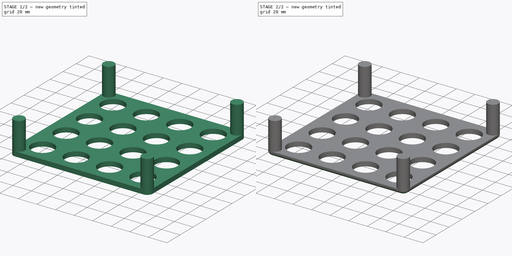
[diagram: build sequence overview — one tinted view per stage of 2, left to right]
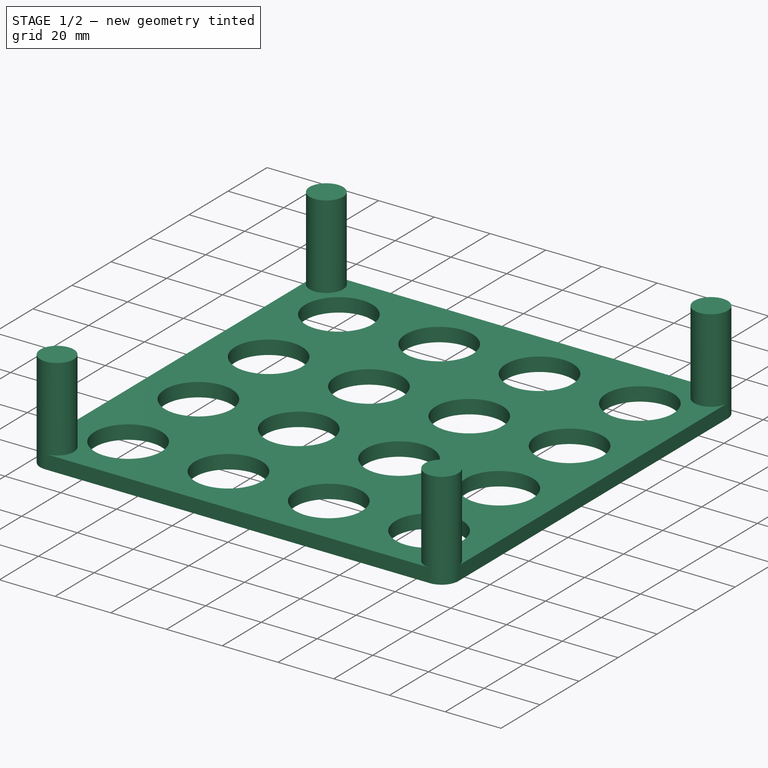
[diagram: stage 1 of 2 — iso view after this stage's code; geometry added in this stage tinted green]
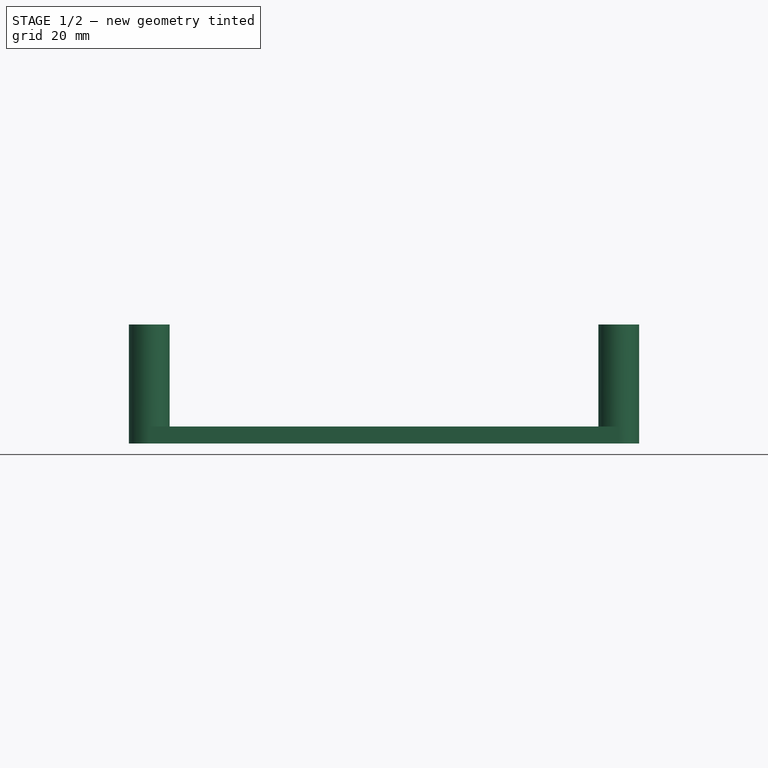
[diagram: stage 1 of 2 — front view after this stage's code; geometry added in this stage tinted green]
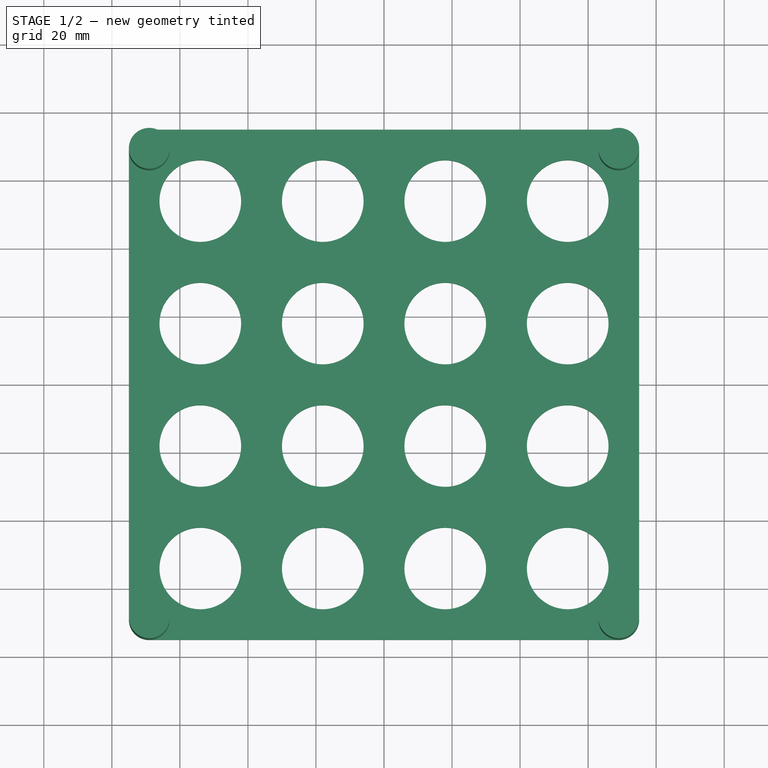
[diagram: stage 1 of 2 — top view after this stage's code; geometry added in this stage tinted green]
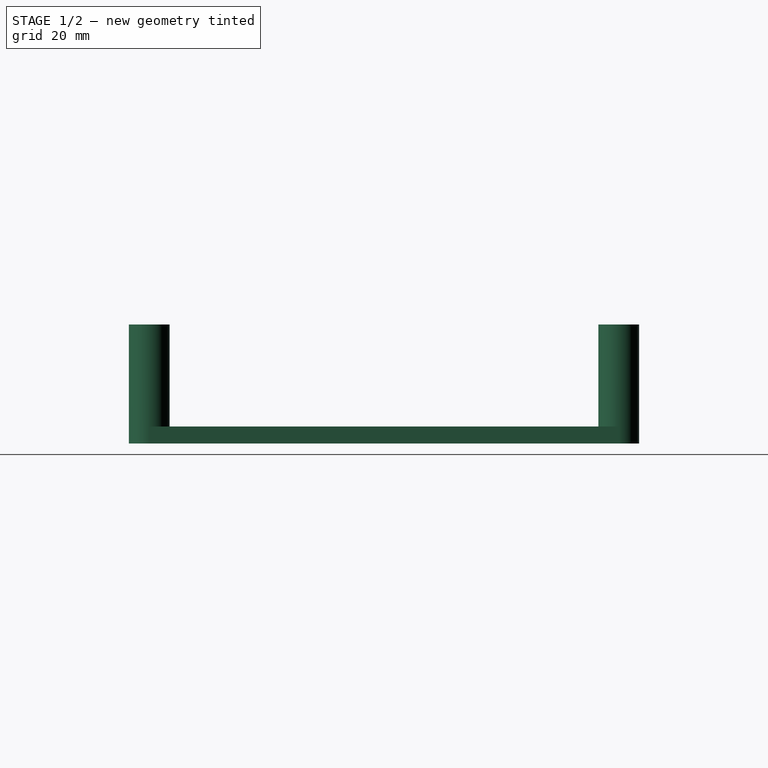
[diagram: stage 1 of 2 — right view after this stage's code; geometry added in this stage tinted green]
FCSTD DOCUMENT  (FreeCAD 1.0R39109 (Git))
Label: midi_controller
License: All rights reserved
LicenseURL: https://en.wikipedia.org/wiki/All_rights_reserved
objects: Sketcher::SketchObject×2, PartDesign::Pad×2, PartDesign::Fillet×1, PartDesign::Body×1
note: 14 computed .brp shape members not serialized (recipe doc carries the construction recipe); baked Part::Feature solids carry a one-line shape summary decoded from their .brp

FEATURE [Sketcher::SketchObject] Sketch
  ArcFitTolerance = 1e-06
  AttachmentSupport = -> [XY_Plane]
  FullyConstrained = false
  MakeInternals = false
  MapMode = 5
  sketch-geometry (29):
    g0: LineSegment StartX=-69 StartY=-75 StartZ=0 EndX=69 EndY=-75 EndZ=0
    g1: LineSegment StartX=75 StartY=-69 StartZ=0 EndX=75 EndY=69 EndZ=0
    g2: LineSegment StartX=69 StartY=75 StartZ=0 EndX=-69 EndY=75 EndZ=0
    g3: LineSegment StartX=-75 StartY=69 StartZ=0 EndX=-75 EndY=-69 EndZ=0
    g4: GeomPoint [constr] X=0 Y=0 Z=0
    g5: Circle CenterX=-54 CenterY=54 CenterZ=0 NormalX=0 NormalY=0 NormalZ=1 AngleXU=0 Radius=12
    g6: Circle CenterX=-18 CenterY=54 CenterZ=0 NormalX=0 NormalY=0 NormalZ=1 AngleXU=0 Radius=12
    g7: Circle CenterX=18 CenterY=54 CenterZ=0 NormalX=0 NormalY=0 NormalZ=1 AngleXU=0 Radius=12
    g8: Circle CenterX=54 CenterY=54 CenterZ=0 NormalX=0 NormalY=0 NormalZ=1 AngleXU=0 Radius=12
    g9: Circle CenterX=-54 CenterY=18 CenterZ=0 NormalX=0 NormalY=0 NormalZ=1 AngleXU=0 Radius=12
    g10: Circle CenterX=-18 CenterY=18 CenterZ=0 NormalX=0 NormalY=0 NormalZ=1 AngleXU=0 Radius=12
    g11: Circle CenterX=18 CenterY=18 CenterZ=0 NormalX=0 NormalY=0 NormalZ=1 AngleXU=0 Radius=12
    g12: Circle CenterX=54 CenterY=18 CenterZ=0 NormalX=0 NormalY=0 NormalZ=1 AngleXU=0 Radius=12
    g13: Circle CenterX=-54 CenterY=-18 CenterZ=0 NormalX=0 NormalY=0 NormalZ=1 AngleXU=0 Radius=12
    g14: Circle CenterX=-18 CenterY=-18 CenterZ=0 NormalX=0 NormalY=0 NormalZ=1 AngleXU=0 Radius=12
    g15: Circle CenterX=18 CenterY=-18 CenterZ=0 NormalX=0 NormalY=0 NormalZ=1 AngleXU=0 Radius=12
    g16: Circle CenterX=54 CenterY=-18 CenterZ=0 NormalX=0 NormalY=0 NormalZ=1 AngleXU=0 Radius=12
    g17: Circle CenterX=-54 CenterY=-54 CenterZ=0 NormalX=0 NormalY=0 NormalZ=1 AngleXU=0 Radius=12
    g18: Circle CenterX=-18 CenterY=-54 CenterZ=0 NormalX=0 NormalY=0 NormalZ=1 AngleXU=0 Radius=12
    g19: Circle CenterX=18 CenterY=-54 CenterZ=0 NormalX=0 NormalY=0 NormalZ=1 AngleXU=0 Radius=12
    g20: Circle CenterX=54 CenterY=-54 CenterZ=0 NormalX=0 NormalY=0 NormalZ=1 AngleXU=0 Radius=12
    g21: ArcOfCircle CenterX=-69 CenterY=69 CenterZ=0 NormalX=0 NormalY=0 NormalZ=1 AngleXU=0 Radius=6 StartAngle=1.5708 EndAngle=3.14159
    g22: GeomPoint [constr] X=-75 Y=75 Z=0
    g23: ArcOfCircle CenterX=69 CenterY=69 CenterZ=0 NormalX=0 NormalY=0 NormalZ=1 AngleXU=0 Radius=6 StartAngle=7e-16 EndAngle=1.5708
    g24: GeomPoint [constr] X=75 Y=75 Z=0
    g25: ArcOfCircle CenterX=69 CenterY=-69 CenterZ=0 NormalX=0 NormalY=0 NormalZ=1 AngleXU=0 Radius=6 StartAngle=4.71239 EndAngle=6.28319
    g26: GeomPoint [constr] X=75 Y=-75 Z=0
    g27: ArcOfCircle CenterX=-69 CenterY=-69 CenterZ=0 NormalX=0 NormalY=0 NormalZ=1 AngleXU=0 Radius=6 StartAngle=3.14159 EndAngle=4.71239
    g28: GeomPoint [constr] X=-75 Y=-75 Z=0
  constraints (48):
    c: Horizontal(g0)
    c: Horizontal(g2)
    c: Vertical(g1)
    c: Vertical(g3)
    c: Symmetric(g24,g28,g4)
    c: Distance(g26,g28) = 150
    c: Distance(g28,g22) = 150
    c: Coincident(g4,g-1)
    c: Diameter(g5) = 24
    c: Distance(g5,g2) = 21
    c: Distance(g5,g3) = 21
    c: Diameter(g6) = 24
    c: Diameter(g7) = 24
    c: Diameter(g8) = 24
    c: Diameter(g9) = 24
    c: Diameter(g10) = 24
    c: Diameter(g11) = 24
    c: Diameter(g12) = 24
    c: Diameter(g13) = 24
    c: Diameter(g14) = 24
    c: Diameter(g15) = 24
    c: Diameter(g16) = 24
    c: Diameter(g17) = 24
    c: Diameter(g18) = 24
    c: Diameter(g19) = 24
    c: Diameter(g20) = 24
    c: Distance(g20,g0) = 21
    c: Distance(g20,g1) = 21
    c: PointOnObject(g22,g3)
    c: PointOnObject(g22,g2)
    c: Tangent(g3,g21) = -1.5708
    c: Tangent(g2,g21) = -1.5708
    c: PointOnObject(g24,g2)
    c: PointOnObject(g24,g1)
    c: Tangent(g2,g23) = -1.5708
    c: Tangent(g1,g23) = -1.5708
    c: PointOnObject(g26,g1)
    c: PointOnObject(g26,g0)
    c: Tangent(g1,g25) = -1.5708
    c: Tangent(g0,g25) = -1.5708
    c: PointOnObject(g28,g3)
    c: PointOnObject(g28,g0)
    c: Tangent(g3,g27) = -1.5708
    c: Tangent(g0,g27) = -1.5708
    c: Radius(g21) = 6
    c: Radius(g23) = 6
    c: Radius(g25) = 6
    c: Radius(g27) = 6
FEATURE [PartDesign::Pad] Pad
  Direction = (0,0,1)
  Length = 5
  Length2 = 10
  Profile = -> Sketch
  ReferenceAxis = -> Sketch [N_Axis]
  Refine = true
  Suppressed = false
  Type = 0
FEATURE [Sketcher::SketchObject] Sketch001
  ArcFitTolerance = 1e-06
  AttachmentSupport = -> [Pad]
  FullyConstrained = true
  MakeInternals = false
  MapMode = 5
  Placement = pos=(0,0,5) rot=(0,0,1;0rad)
  sketch-geometry (17):
    g0: LineSegment [constr] StartX=-69 StartY=-75 StartZ=0 EndX=69 EndY=-75 EndZ=0
    g1: LineSegment [constr] StartX=75 StartY=-69 StartZ=0 EndX=75 EndY=69 EndZ=0
    g2: LineSegment [constr] StartX=69 StartY=75 StartZ=0 EndX=-69 EndY=75 EndZ=0
    g3: LineSegment [constr] StartX=-75 StartY=69 StartZ=0 EndX=-75 EndY=-69 EndZ=0
    g4: GeomPoint [constr] X=0 Y=0 Z=0
    g5: ArcOfCircle [constr] CenterX=-69 CenterY=69 CenterZ=0 NormalX=0 NormalY=0 NormalZ=1 AngleXU=0 Radius=6 StartAngle=1.5708 EndAngle=3.14159
    g6: GeomPoint [constr] X=-75 Y=75 Z=0
    g7: ArcOfCircle [constr] CenterX=-69 CenterY=-69 CenterZ=0 NormalX=0 NormalY=0 NormalZ=1 AngleXU=0 Radius=6 StartAngle=3.14159 EndAngle=4.71239
    g8: GeomPoint [constr] X=-75 Y=-75 Z=0
    g9: ArcOfCircle [constr] CenterX=69 CenterY=-69 CenterZ=0 NormalX=0 NormalY=0 NormalZ=1 AngleXU=0 Radius=6 StartAngle=4.71239 EndAngle=6.28319
    g10: GeomPoint [constr] X=75 Y=-75 Z=0
    g11: ArcOfCircle [constr] CenterX=69 CenterY=69 CenterZ=0 NormalX=0 NormalY=0 NormalZ=1 AngleXU=0 Radius=6 StartAngle=0 EndAngle=1.5708
    g12: GeomPoint [constr] X=75 Y=75 Z=0
    g13: Circle CenterX=-69 CenterY=69 CenterZ=0 NormalX=0 NormalY=0 NormalZ=1 AngleXU=0 Radius=6
    g14: Circle CenterX=69 CenterY=69 CenterZ=0 NormalX=0 NormalY=0 NormalZ=1 AngleXU=0 Radius=6
    g15: Circle CenterX=69 CenterY=-69 CenterZ=0 NormalX=0 NormalY=0 NormalZ=1 AngleXU=0 Radius=6
    g16: Circle CenterX=-69 CenterY=-69 CenterZ=0 NormalX=0 NormalY=0 NormalZ=1 AngleXU=0 Radius=6
  constraints (36):
    c: Horizontal(g0)
    c: Horizontal(g2)
    c: Vertical(g1)
    c: Vertical(g3)
    c: Symmetric(g12,g8,g4)
    c: Distance(g10,g8) = 150
    c: Distance(g8,g6) = 150
    c: Coincident(g4,g-1)
    c: PointOnObject(g6,g2)
    c: PointOnObject(g6,g3)
    c: Tangent(g2,g5) = -1.5708
    c: Tangent(g3,g5) = -1.5708
    c: PointOnObject(g8,g3)
    c: PointOnObject(g8,g0)
    c: Tangent(g3,g7) = -1.5708
    c: Tangent(g0,g7) = -1.5708
    c: PointOnObject(g10,g0)
    c: PointOnObject(g10,g1)
    c: Tangent(g0,g9) = -1.5708
    c: Tangent(g1,g9) = -1.5708
    c: PointOnObject(g12,g2)
    c: PointOnObject(g12,g1)
    c: Tangent(g2,g11) = -1.5708
    c: Tangent(g1,g11) = -1.5708
    c: Radius(g5) = 6
    c: Radius(g11) = 6
    c: Radius(g9) = 6
    c: Radius(g7) = 6
    c: Coincident(g13,g5)
    c: PointOnObject(g2,g13)
    c: Coincident(g14,g11)
    c: PointOnObject(g2,g14)
    c: Coincident(g15,g9)
    c: Equal(g15,g9)
    c: Coincident(g16,g7)
    c: PointOnObject(g0,g16)
FEATURE [PartDesign::Pad] Pad001
  BaseFeature = -> Pad
  Direction = (0,0,1)
  Length = 30
  Length2 = 10
  Profile = -> Sketch001
  ReferenceAxis = -> Sketch001 [N_Axis]
  Refine = true
  Suppressed = false
  Type = 0
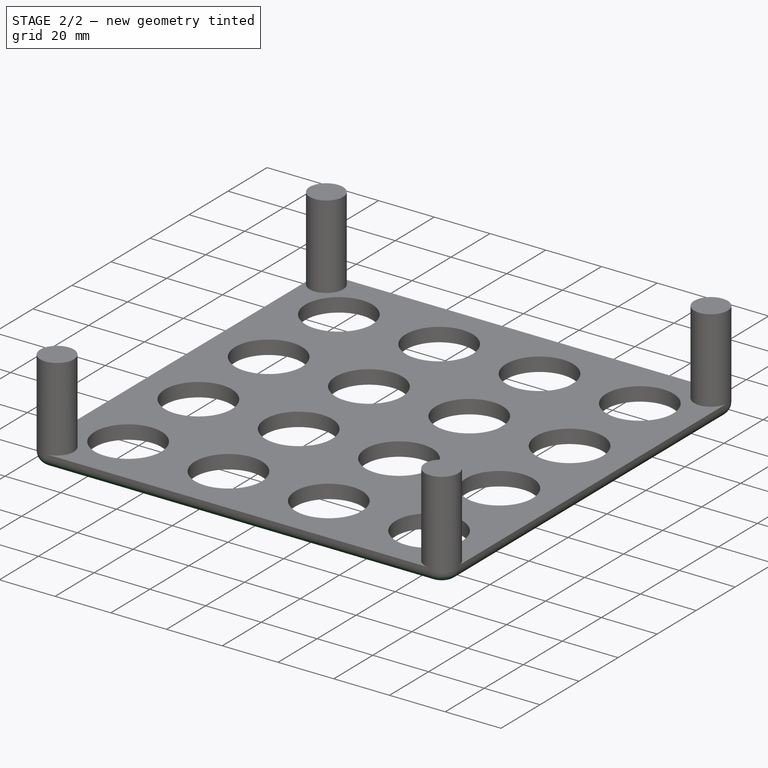
[diagram: stage 2 of 2 — iso view after this stage's code; geometry added in this stage tinted green]
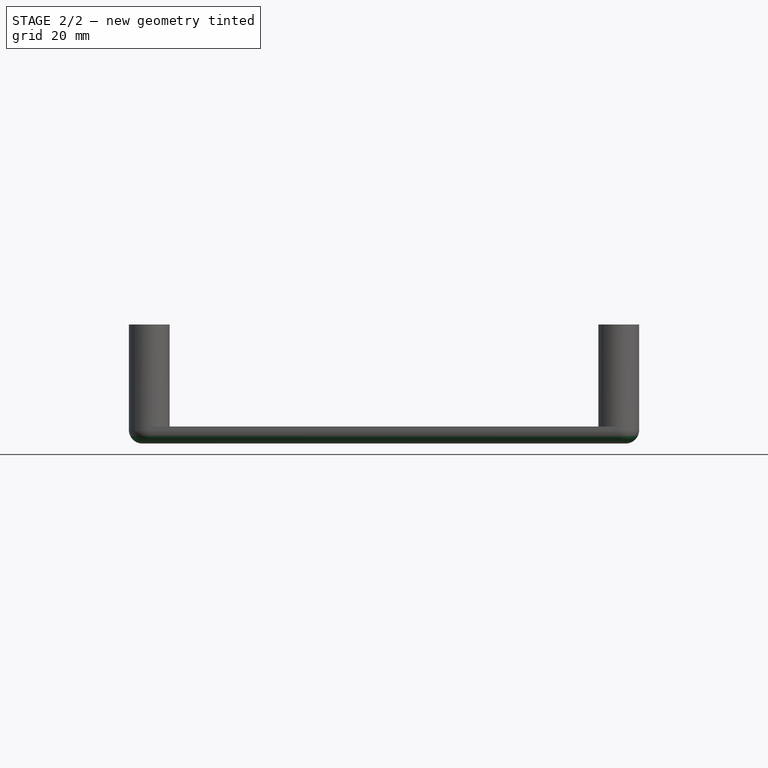
[diagram: stage 2 of 2 — front view after this stage's code; geometry added in this stage tinted green]
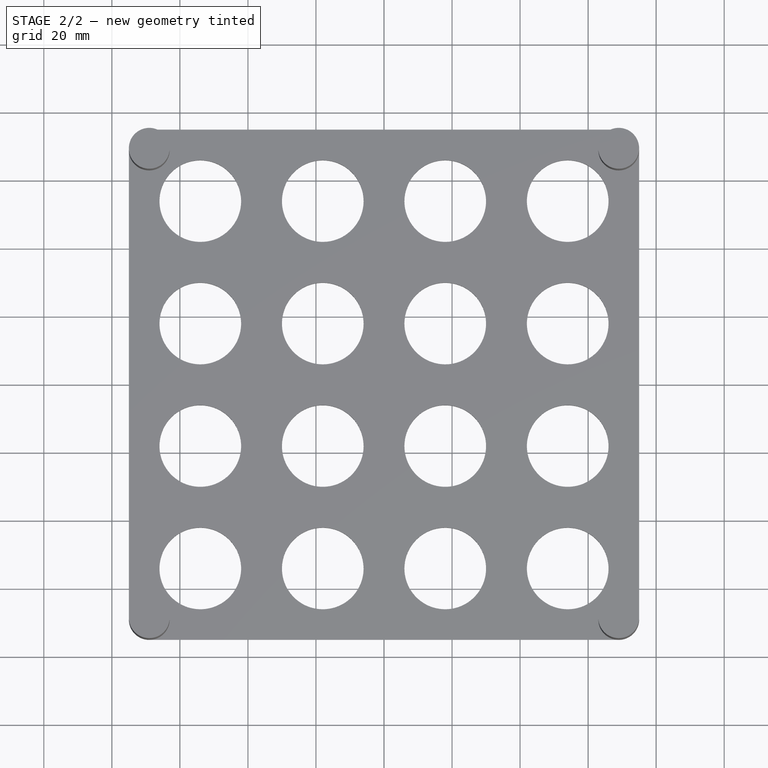
[diagram: stage 2 of 2 — top view after this stage's code; geometry added in this stage tinted green]
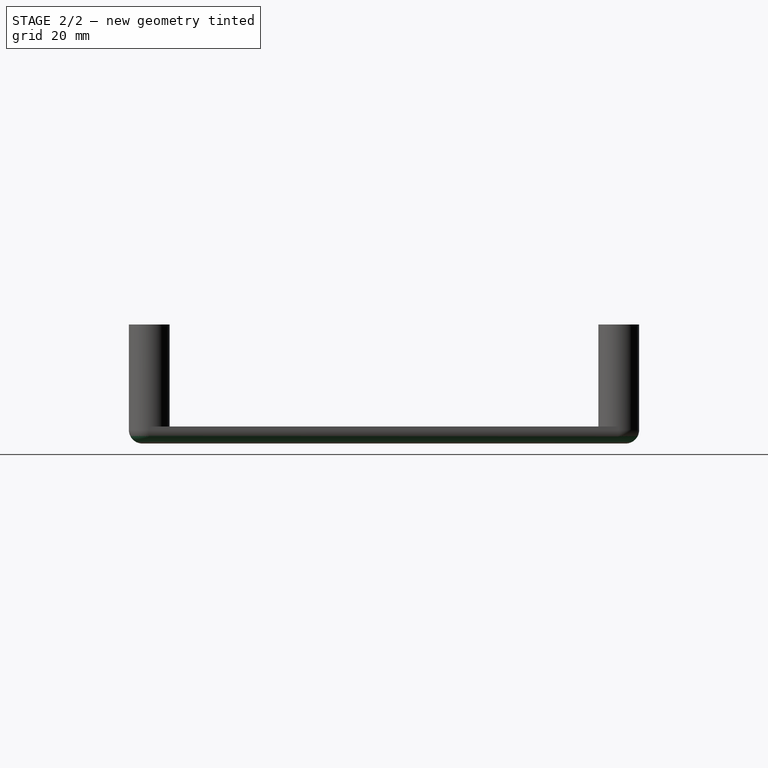
[diagram: stage 2 of 2 — right view after this stage's code; geometry added in this stage tinted green]
FEATURE [PartDesign::Fillet] Fillet
  Base = -> Pad001 [Edge3,Edge10,Edge8,Edge6]
  BaseFeature = -> Pad001
  Radius = 4
  Refine = true
  SupportTransform = false
  Suppressed = false
  UseAllEdges = false
FEATURE [PartDesign::Body] Body
  AllowCompound = false
  Group = -> [Sketch,Pad,Sketch001,Pad001,Fillet]
  Origin = -> Origin
  Tip = -> Fillet
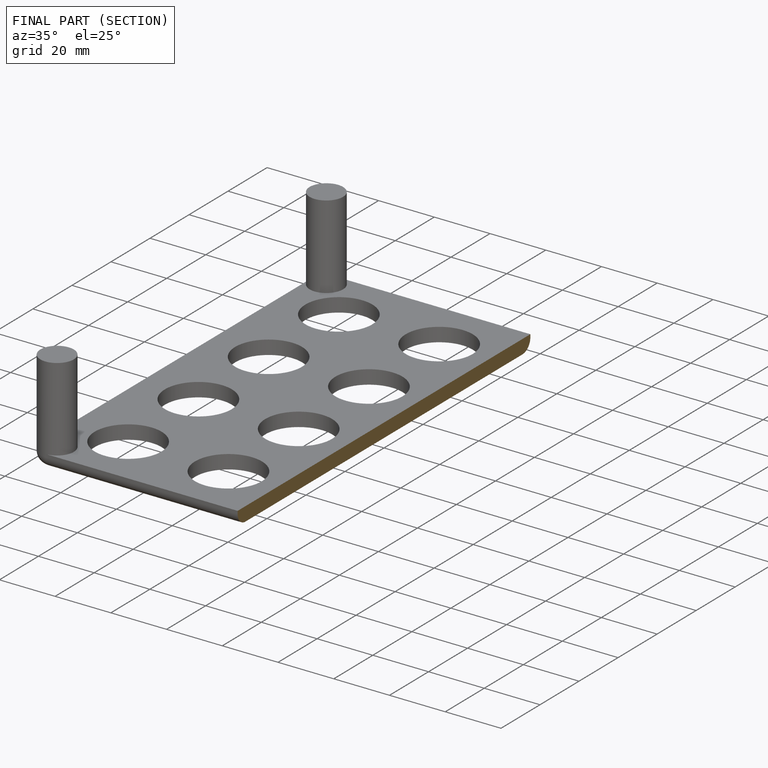
[diagram: finished part — half-section view (interior)]
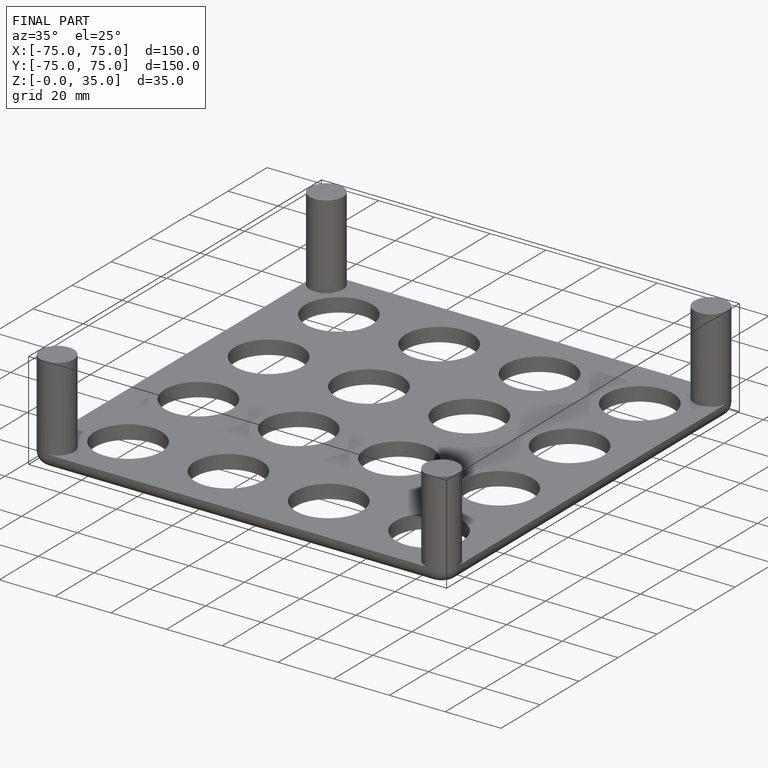
[diagram: finished part — iso view with bounding-box wireframe]
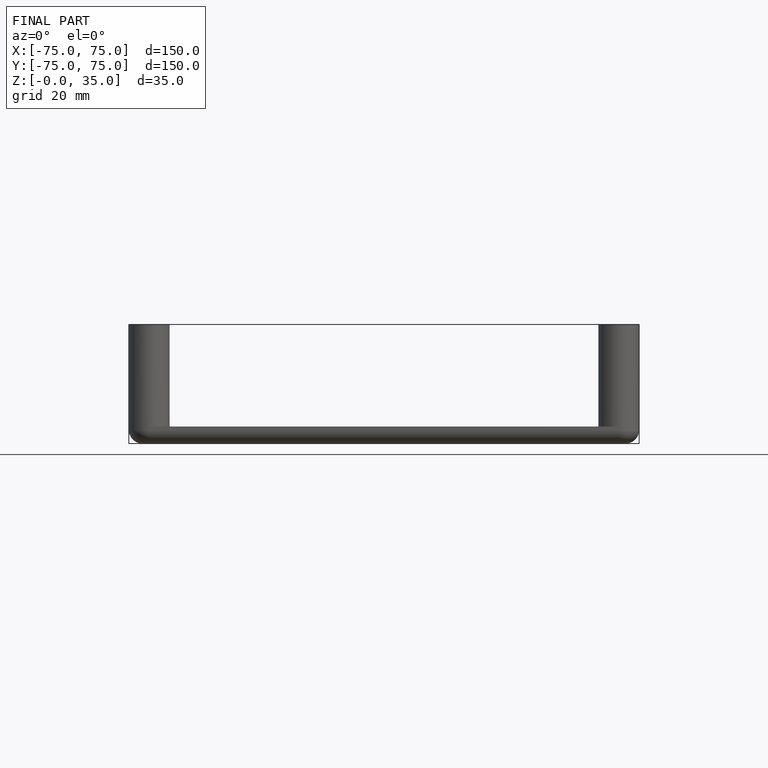
[diagram: finished part — front view with bounding-box wireframe]
